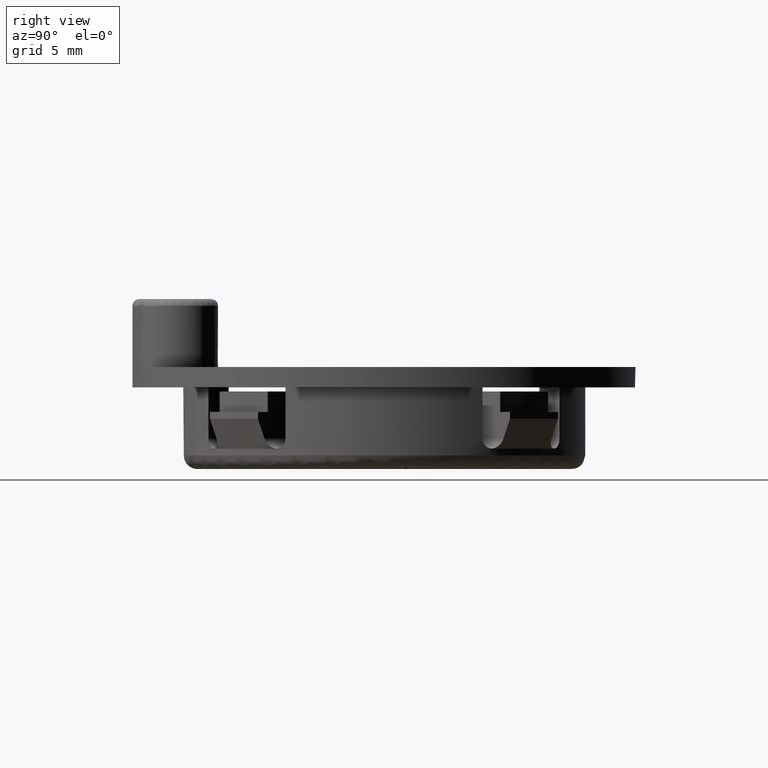
[diagram: clean part render]
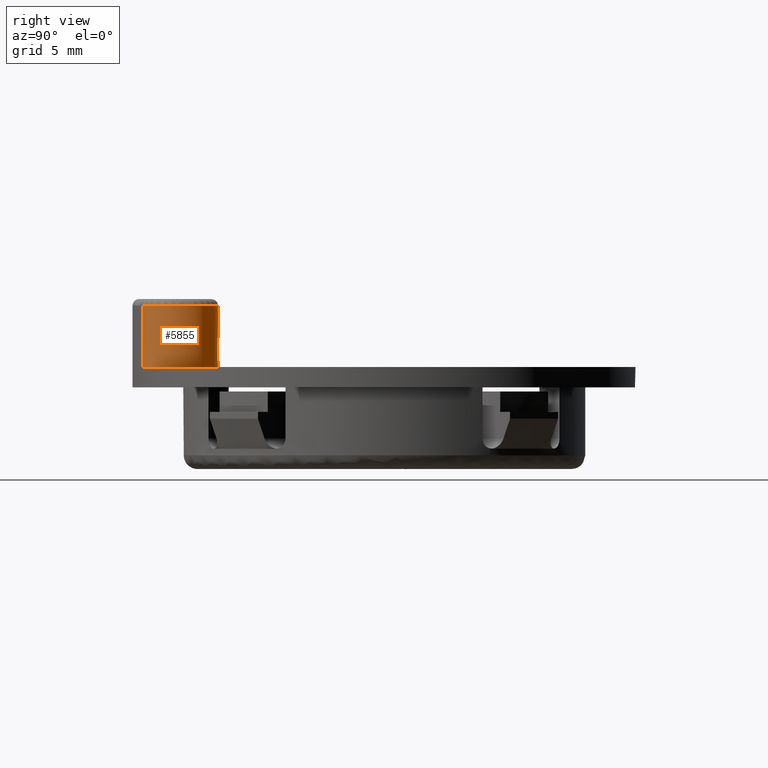
[diagram: same view with one face highlighted and labeled with its STEP entity id]
A machine part, right view. The second image highlights one B-rep face of the part: STEP entity #5855.
In plain terms, the highlighted face is a freeform B-spline surface patch.
Its self-contained STEP definition (entity closure, byte-faithful):
#694=CARTESIAN_POINT('',(5.709376043485900,-12.563559415789500,7.500000000000000));
#695=VERTEX_POINT('',#694);
#696=CARTESIAN_POINT('',(3.523634311004535,-12.305445999325480,6.500000000000000));
#697=VERTEX_POINT('',#696);
#698=CARTESIAN_POINT('',(5.709376043485900,-12.563559415789500,7.500000000000000));
#699=CARTESIAN_POINT('',(5.617167072501021,-12.511499174540530,7.500000000000001));
#700=CARTESIAN_POINT('',(5.523886750100616,-12.465570316019461,7.489220470079863));
#701=CARTESIAN_POINT('',(5.382088726557199,-12.404896370357021,7.461383820532273));
#702=CARTESIAN_POINT('',(5.334511508388861,-12.386049932545280,7.450125781416207));
#703=CARTESIAN_POINT('',(5.238700411857470,-12.351029351638630,7.424107884440049));
#704=CARTESIAN_POINT('',(5.190611764285743,-12.334920622502700,7.409373939822673));
#705=CARTESIAN_POINT('',(5.047665661269797,-12.291130980475170,7.361353355368366));
#706=CARTESIAN_POINT('',(4.953326857092542,-12.267661864021470,7.324082837287678));
#707=CARTESIAN_POINT('',(4.765733509918675,-12.230672929867319,7.241798004146542));
#708=CARTESIAN_POINT('',(4.672486855666638,-12.217166090230229,7.196758085316085));
#709=CARTESIAN_POINT('',(4.486537579900899,-12.199383036782240,7.100599825485801));
#710=CARTESIAN_POINT('',(4.394955047172007,-12.195229499207210,7.050049012362027));
#711=CARTESIAN_POINT('',(4.214921266124967,-12.195435139384930,6.946046970959862));
#712=CARTESIAN_POINT('',(4.126269086495350,-12.199781546302461,6.892479627768878));
#713=CARTESIAN_POINT('',(3.951045304438320,-12.216427797428031,6.783184261702630));
#714=CARTESIAN_POINT('',(3.864477012139323,-12.228730548069580,6.727451308385350));
#715=CARTESIAN_POINT('',(3.735822760501092,-12.253056016036830,6.642805293194292));
#716=CARTESIAN_POINT('',(3.693138639474094,-12.262145917395801,6.614414448110207));
#717=CARTESIAN_POINT('',(3.608118895439613,-12.282305989337420,6.557370099380069));
#718=CARTESIAN_POINT('',(3.565612568635765,-12.293425628108180,6.528599969599648));
#719=CARTESIAN_POINT('',(3.523634311004535,-12.305445999325480,6.500000000000000));
#720=B_SPLINE_CURVE_WITH_KNOTS('',3,(#698,#699,#700,#701,#702,#703,#704,#705,#706,#707,#708,#709,#710,#711,#712,#713,#714,#715,#716,#717,#718,#719),.UNSPECIFIED.,.F.,.U.,(4,2,2,2,2,2,2,2,2,2,4),(0.0,0.125000000000000,0.187500000000000,0.250000000000000,0.375000000000000,0.500000000000000,0.625000000000000,0.750000000000000,0.875000000000000,0.937500000000000,1.0),.UNSPECIFIED.);
#721=EDGE_CURVE('',#695,#697,#720,.T.);
#4442=CARTESIAN_POINT('',(5.092752715123740,-17.785214920900049,12.0));
#4443=VERTEX_POINT('',#4442);
#4513=CARTESIAN_POINT('',(3.523634311004535,-12.305445999325480,12.0));
#4514=VERTEX_POINT('',#4513);
#4548=CARTESIAN_POINT('',(3.523634311004535,-12.305445999325480,12.0));
#4549=CARTESIAN_POINT('',(5.105507341988511,-11.852480532821057,12.000000000000002));
#4550=CARTESIAN_POINT('',(6.288723458510320,-12.995940029962540,12.0));
#4551=CARTESIAN_POINT('',(7.471939575032128,-14.139399527104027,12.000000000000002));
#4552=CARTESIAN_POINT('',(7.073282660569923,-15.735824490749829,12.0));
#4553=CARTESIAN_POINT('',(6.674625746107718,-17.332249454395622,12.000000000000002));
#4554=CARTESIAN_POINT('',(5.092752715123740,-17.785214920900049,12.0));
#4562=(BOUNDED_CURVE()B_SPLINE_CURVE(2,(#4548,#4549,#4550,#4551,#4552,#4553,#4554),.UNSPECIFIED.,.F.,.U.)B_SPLINE_CURVE_WITH_KNOTS((3,2,2,3),(0.0,0.333333333333333,0.666666666666667,1.0),.UNSPECIFIED.)CURVE()GEOMETRIC_REPRESENTATION_ITEM()RATIONAL_B_SPLINE_CURVE((1.0,0.866025403784438,1.0,0.866025403784438,1.0,0.866025403784438,1.0))REPRESENTATION_ITEM(''));
#4563=EDGE_CURVE('',#4514,#4443,#4562,.T.);
#5806=CARTESIAN_POINT('',(4.972493906976099,-17.816829149747619,12.137499999999999));
#5807=CARTESIAN_POINT('',(4.972493906976099,-17.816829149747619,6.359062500000000));
#5808=CARTESIAN_POINT('',(7.918683781940312,-17.110657033629455,12.137500000000003));
#5809=CARTESIAN_POINT('',(7.918683781940312,-17.110657033629455,6.359062499999999));
#5810=CARTESIAN_POINT('',(7.033968230108624,-14.213073173018760,12.137499999999999));
#5811=CARTESIAN_POINT('',(7.033968230108624,-14.213073173018760,6.359062500000000));
#5812=CARTESIAN_POINT('',(6.149252678276934,-11.315489312408060,12.137500000000003));
#5813=CARTESIAN_POINT('',(6.149252678276934,-11.315489312408060,6.359062499999999));
#5814=CARTESIAN_POINT('',(3.311083987998915,-12.375447954266329,12.137499999999999));
#5815=CARTESIAN_POINT('',(3.311083987998915,-12.375447954266329,6.359062500000000));
#5823=(BOUNDED_SURFACE()B_SPLINE_SURFACE(1,2,((#5806,#5808,#5810,#5812,#5814),(#5807,#5809,#5811,#5813,#5815)),.UNSPECIFIED.,.F.,.F.,.U.)B_SPLINE_SURFACE_WITH_KNOTS((2,2),(3,2,3),(0.0,5.778437500000003),(0.0,4.927315967657183,9.854631935314366),.UNSPECIFIED.)GEOMETRIC_REPRESENTATION_ITEM()RATIONAL_B_SPLINE_SURFACE(((1.0,0.685182990326359,1.0,0.685182990326359,1.0),(1.0,0.685182990326359,1.0,0.685182990326359,1.0)))REPRESENTATION_ITEM('')SURFACE());
#5824=CARTESIAN_POINT('',(3.523634311004535,-12.305445999325480,12.0));
#5825=CARTESIAN_POINT('',(3.523634311004535,-12.305445999325480,6.500000000000000));
#5826=QUASI_UNIFORM_CURVE('',1,(#5824,#5825),.UNSPECIFIED.,.F.,.U.);
#5827=EDGE_CURVE('',#4514,#697,#5826,.T.);
#5828=ORIENTED_EDGE('',*,*,#5827,.F.);
#5829=ORIENTED_EDGE('',*,*,#4563,.T.);
#5830=CARTESIAN_POINT('',(5.092752715123740,-17.785214920900049,7.500000000000000));
#5831=VERTEX_POINT('',#5830);
#5832=CARTESIAN_POINT('',(5.092752715123740,-17.785214920900049,12.0));
#5833=CARTESIAN_POINT('',(5.092752715123740,-17.785214920900049,7.500000000000000));
#5834=QUASI_UNIFORM_CURVE('',1,(#5832,#5833),.UNSPECIFIED.,.F.,.U.);
#5835=EDGE_CURVE('',#4443,#5831,#5834,.T.);
#5836=ORIENTED_EDGE('',*,*,#5835,.T.);
#5837=CARTESIAN_POINT('',(5.092752715123740,-17.785214920900049,7.500000000000000));
#5838=CARTESIAN_POINT('',(6.916100555314078,-17.263103734442893,7.500000000000000));
#5839=CARTESIAN_POINT('',(7.138527112446024,-15.379563486921510,7.500000000000000));
#5840=CARTESIAN_POINT('',(7.360953669577971,-13.496023239400134,7.500000000000000));
#5841=CARTESIAN_POINT('',(5.709376043485898,-12.563559415789509,7.500000000000000));
#5849=(BOUNDED_CURVE()B_SPLINE_CURVE(2,(#5837,#5838,#5839,#5840,#5841),.UNSPECIFIED.,.F.,.U.)B_SPLINE_CURVE_WITH_KNOTS((3,2,3),(0.0,0.500000000000000,1.0),.UNSPECIFIED.)CURVE()GEOMETRIC_REPRESENTATION_ITEM()RATIONAL_B_SPLINE_CURVE((1.0,0.832504634925972,1.0,0.832504634925972,1.0))REPRESENTATION_ITEM(''));
#5850=EDGE_CURVE('',#5831,#695,#5849,.T.);
#5851=ORIENTED_EDGE('',*,*,#5850,.T.);
#5852=ORIENTED_EDGE('',*,*,#721,.T.);
#5853=EDGE_LOOP('',(#5828,#5829,#5836,#5851,#5852));
#5854=FACE_OUTER_BOUND('',#5853,.T.);
#5855=ADVANCED_FACE('',(#5854),#5823,.T.);